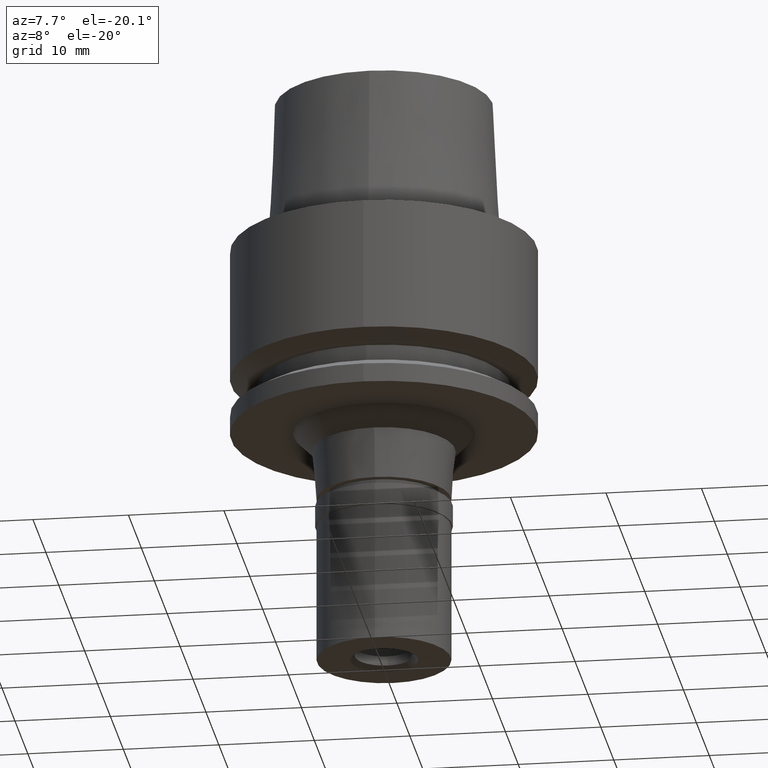
[diagram: clean part render]
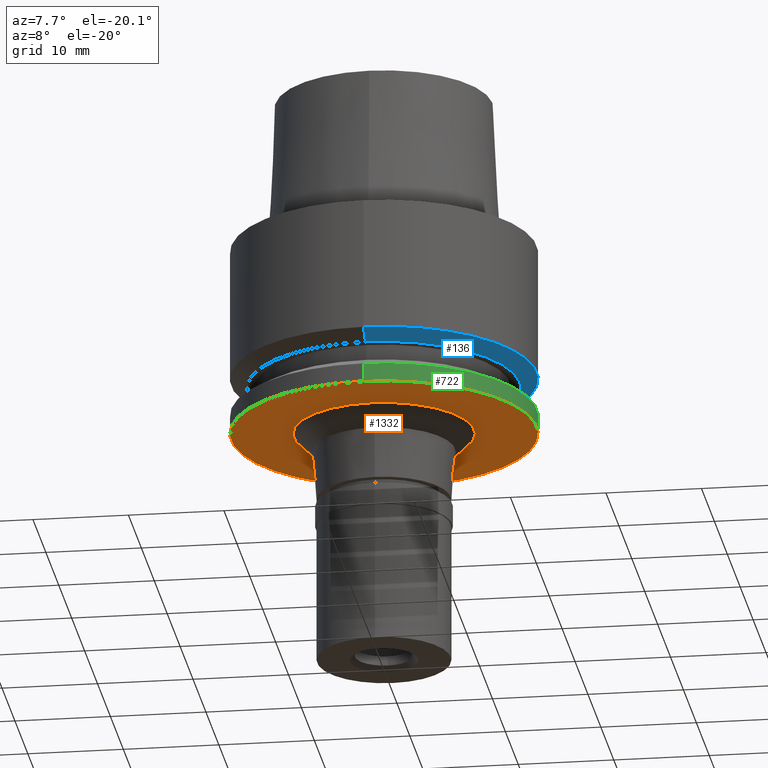
[diagram: same view with three faces highlighted in distinct colors, each labeled with its STEP entity id]
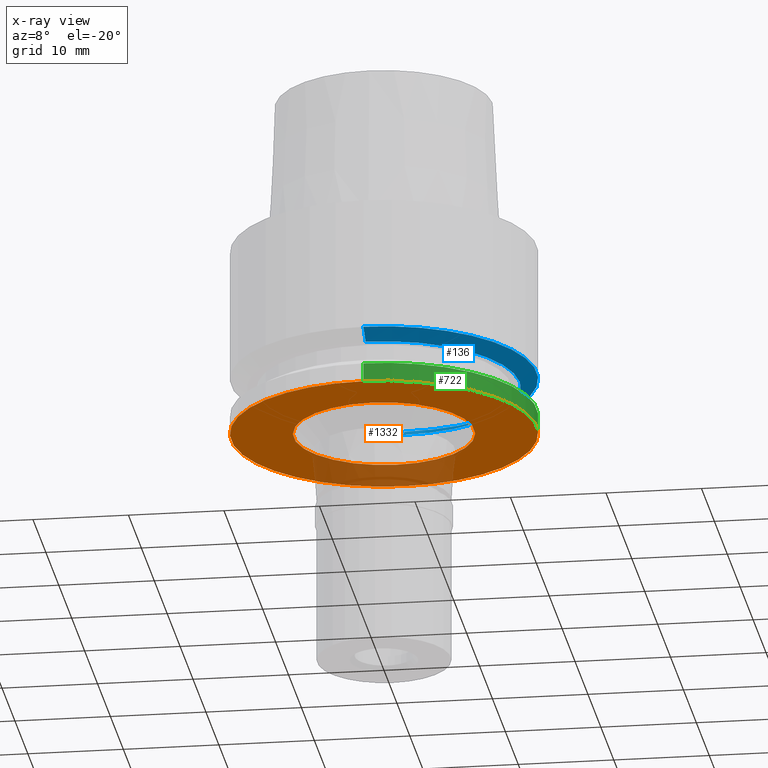
[diagram: x-ray of the same camera — body ghosted, the three highlighted faces saturated]
A machine part, auxiliary view with three faces highlighted in distinct colors.
The next image is the same camera in x-ray (body ghosted, the three faces saturated) — at least one of them is partly hidden behind the body in this view.
Their STEP definitions:

[orange] entity #1332 — the highlighted planar face has unit normal (0, 0, -1).
#65 = ORIENTED_EDGE ( 'NONE', *, *, #1239, .F. ) ;
#195 = CIRCLE ( 'NONE', #1988, 9.463689916687000547 ) ;
#216 = FACE_BOUND ( 'NONE', #1781, .T. ) ;
#326 = CIRCLE ( 'NONE', #497, 16.00000000000000000 ) ;
#381 = CARTESIAN_POINT ( 'NONE',  ( 0.0000000000000000000, 0.0000000000000000000, -20.00000000000000000 ) ) ;
#494 = CARTESIAN_POINT ( 'NONE',  ( 0.0000000000000000000, -9.463689916687000547, -20.00000000000000000 ) ) ;
#497 = AXIS2_PLACEMENT_3D ( 'NONE', #538, #1378, #901 ) ;
#532 = ORIENTED_EDGE ( 'NONE', *, *, #543, .F. ) ;
#538 = CARTESIAN_POINT ( 'NONE',  ( 0.0000000000000000000, 0.0000000000000000000, -20.00000000000000000 ) ) ;
#543 = EDGE_CURVE ( 'NONE', #1497, #1995, #1373, .T. ) ;
#563 = VERTEX_POINT ( 'NONE', #2630 ) ;
#568 = DIRECTION ( 'NONE',  ( 0.0000000000000000000, 0.0000000000000000000, -1.000000000000000000 ) ) ;
#608 = CARTESIAN_POINT ( 'NONE',  ( 0.0000000000000000000, 16.00000000000000000, -20.00000000000000000 ) ) ;
#683 = DIRECTION ( 'NONE',  ( 0.0000000000000000000, -1.000000000000000000, 0.0000000000000000000 ) ) ;
#818 = EDGE_LOOP ( 'NONE', ( #532, #1062 ) ) ;
#892 = AXIS2_PLACEMENT_3D ( 'NONE', #381, #568, #1607 ) ;
#901 = DIRECTION ( 'NONE',  ( 0.0000000000000000000, -1.000000000000000000, 0.0000000000000000000 ) ) ;
#1028 = CIRCLE ( 'NONE', #892, 9.463689916687000547 ) ;
#1062 = ORIENTED_EDGE ( 'NONE', *, *, #1461, .F. ) ;
#1226 = CARTESIAN_POINT ( 'NONE',  ( 0.0000000000000000000, -16.00000000000000000, -20.00000000000000000 ) ) ;
#1239 = EDGE_CURVE ( 'NONE', #563, #2261, #1028, .T. ) ;
#1332 = ADVANCED_FACE ( 'NONE', ( #1468, #216 ), #2305, .T. ) ;
#1373 = CIRCLE ( 'NONE', #1985, 16.00000000000000000 ) ;
#1378 = DIRECTION ( 'NONE',  ( 0.0000000000000000000, 0.0000000000000000000, 1.000000000000000000 ) ) ;
#1461 = EDGE_CURVE ( 'NONE', #1995, #1497, #326, .T. ) ;
#1468 = FACE_OUTER_BOUND ( 'NONE', #818, .T. ) ;
#1497 = VERTEX_POINT ( 'NONE', #608 ) ;
#1607 = DIRECTION ( 'NONE',  ( 0.0000000000000000000, 1.000000000000000000, 0.0000000000000000000 ) ) ;
#1716 = DIRECTION ( 'NONE',  ( 0.0000000000000000000, 0.0000000000000000000, -1.000000000000000000 ) ) ;
#1736 = CARTESIAN_POINT ( 'NONE',  ( 0.0000000000000000000, 0.0000000000000000000, -20.00000000000000000 ) ) ;
#1781 = EDGE_LOOP ( 'NONE', ( #65, #1979 ) ) ;
#1894 = DIRECTION ( 'NONE',  ( 0.0000000000000000000, -1.000000000000000000, 0.0000000000000000000 ) ) ;
#1971 = CARTESIAN_POINT ( 'NONE',  ( 0.0000000000000000000, 0.0000000000000000000, -20.00000000000000000 ) ) ;
#1979 = ORIENTED_EDGE ( 'NONE', *, *, #2183, .F. ) ;
#1985 = AXIS2_PLACEMENT_3D ( 'NONE', #1971, #2370, #2166 ) ;
#1988 = AXIS2_PLACEMENT_3D ( 'NONE', #1736, #2557, #683 ) ;
#1995 = VERTEX_POINT ( 'NONE', #1226 ) ;
#2118 = AXIS2_PLACEMENT_3D ( 'NONE', #2342, #1716, #1894 ) ;
#2166 = DIRECTION ( 'NONE',  ( 0.0000000000000000000, 1.000000000000000000, 0.0000000000000000000 ) ) ;
#2183 = EDGE_CURVE ( 'NONE', #2261, #563, #195, .T. ) ;
#2261 = VERTEX_POINT ( 'NONE', #494 ) ;
#2305 = PLANE ( 'NONE',  #2118 ) ;
#2342 = CARTESIAN_POINT ( 'NONE',  ( 0.0000000000000000000, 0.0000000000000000000, -20.00000000000000000 ) ) ;
#2370 = DIRECTION ( 'NONE',  ( 0.0000000000000000000, 0.0000000000000000000, 1.000000000000000000 ) ) ;
#2557 = DIRECTION ( 'NONE',  ( 0.0000000000000000000, 0.0000000000000000000, -1.000000000000000000 ) ) ;
#2630 = CARTESIAN_POINT ( 'NONE',  ( 0.0000000000000000000, 9.463689916687000547, -20.00000000000000000 ) ) ;

[blue] entity #136 — the highlighted conical surface has half-angle 60 deg.
#23 = VECTOR ( 'NONE', #1221, 1000.000000000000000 ) ;
#71 = DIRECTION ( 'NONE',  ( 0.0000000000000000000, 0.0000000000000000000, 1.000000000000000000 ) ) ;
#103 = AXIS2_PLACEMENT_3D ( 'NONE', #2144, #71, #2563 ) ;
#136 = ADVANCED_FACE ( 'NONE', ( #296 ), #2678, .T. ) ;
#229 = DIRECTION ( 'NONE',  ( 0.0000000000000000000, -0.8660254037847886499, -0.4999999999993937627 ) ) ;
#296 = FACE_OUTER_BOUND ( 'NONE', #1191, .T. ) ;
#335 = EDGE_CURVE ( 'NONE', #606, #2267, #1454, .T. ) ;
#361 = AXIS2_PLACEMENT_3D ( 'NONE', #1974, #2388, #516 ) ;
#388 = ORIENTED_EDGE ( 'NONE', *, *, #2628, .F. ) ;
#405 = CARTESIAN_POINT ( 'NONE',  ( 0.0000000000000000000, -16.00000000000000000, -13.97927405783999966 ) ) ;
#490 = VECTOR ( 'NONE', #229, 1000.000000000000000 ) ;
#516 = DIRECTION ( 'NONE',  ( 0.0000000000000000000, 1.000000000000000000, 0.0000000000000000000 ) ) ;
#555 = CARTESIAN_POINT ( 'NONE',  ( 0.0000000000000000000, 16.00000000000000000, -13.97927405783999966 ) ) ;
#577 = LINE ( 'NONE', #405, #23 ) ;
#583 = CIRCLE ( 'NONE', #103, 16.00000000000000000 ) ;
#604 = ORIENTED_EDGE ( 'NONE', *, *, #2304, .T. ) ;
#606 = VERTEX_POINT ( 'NONE', #555 ) ;
#768 = CARTESIAN_POINT ( 'NONE',  ( 0.0000000000000000000, -16.00000000000000000, -13.97927405783999966 ) ) ;
#814 = EDGE_CURVE ( 'NONE', #1951, #1308, #577, .T. ) ;
#920 = CARTESIAN_POINT ( 'NONE',  ( 0.0000000000000000000, 14.23205080756999941, -15.00000000000000000 ) ) ;
#988 = AXIS2_PLACEMENT_3D ( 'NONE', #1996, #1778, #2577 ) ;
#1058 = ORIENTED_EDGE ( 'NONE', *, *, #814, .T. ) ;
#1191 = EDGE_LOOP ( 'NONE', ( #388, #1058, #604, #1444 ) ) ;
#1221 = DIRECTION ( 'NONE',  ( 0.0000000000000000000, 0.8660254037847886499, -0.4999999999993937627 ) ) ;
#1308 = VERTEX_POINT ( 'NONE', #2532 ) ;
#1444 = ORIENTED_EDGE ( 'NONE', *, *, #335, .F. ) ;
#1454 = LINE ( 'NONE', #2072, #490 ) ;
#1778 = DIRECTION ( 'NONE',  ( 0.0000000000000000000, 0.0000000000000000000, 1.000000000000000000 ) ) ;
#1948 = CIRCLE ( 'NONE', #988, 14.23205080756999941 ) ;
#1951 = VERTEX_POINT ( 'NONE', #768 ) ;
#1974 = CARTESIAN_POINT ( 'NONE',  ( 0.0000000000000000000, 0.0000000000000000000, -14.48963702891999894 ) ) ;
#1996 = CARTESIAN_POINT ( 'NONE',  ( 0.0000000000000000000, 0.0000000000000000000, -15.00000000000000000 ) ) ;
#2072 = CARTESIAN_POINT ( 'NONE',  ( 0.0000000000000000000, 16.00000000000000000, -13.97927405783999966 ) ) ;
#2144 = CARTESIAN_POINT ( 'NONE',  ( 0.0000000000000000000, 0.0000000000000000000, -13.97927405783999966 ) ) ;
#2267 = VERTEX_POINT ( 'NONE', #920 ) ;
#2304 = EDGE_CURVE ( 'NONE', #1308, #2267, #1948, .T. ) ;
#2388 = DIRECTION ( 'NONE',  ( 0.0000000000000000000, 0.0000000000000000000, 1.000000000000000000 ) ) ;
#2532 = CARTESIAN_POINT ( 'NONE',  ( 0.0000000000000000000, -14.23205080756999941, -15.00000000000000000 ) ) ;
#2563 = DIRECTION ( 'NONE',  ( 0.0000000000000000000, -1.000000000000000000, 0.0000000000000000000 ) ) ;
#2577 = DIRECTION ( 'NONE',  ( 0.0000000000000000000, -1.000000000000000000, 0.0000000000000000000 ) ) ;
#2628 = EDGE_CURVE ( 'NONE', #1951, #606, #583, .T. ) ;
#2678 = CONICAL_SURFACE ( 'NONE', #361, 15.11602540378000015, 1.047197551196400456 ) ;

[green] entity #722 — the highlighted cylindrical surface (partial cylindrical patch) has radius 16 mm, axis along (0, 0, -1).
#56 = AXIS2_PLACEMENT_3D ( 'NONE', #1967, #2143, #1745 ) ;
#106 = EDGE_CURVE ( 'NONE', #861, #1443, #1544, .T. ) ;
#112 = EDGE_LOOP ( 'NONE', ( #2179, #1604, #2659, #1104 ) ) ;
#171 = DIRECTION ( 'NONE',  ( 0.0000000000000000000, 0.0000000000000000000, -1.000000000000000000 ) ) ;
#326 = CIRCLE ( 'NONE', #497, 16.00000000000000000 ) ;
#345 = CARTESIAN_POINT ( 'NONE',  ( 0.0000000000000000000, -16.00000000000000000, -18.02072594216000212 ) ) ;
#362 = CARTESIAN_POINT ( 'NONE',  ( 0.0000000000000000000, 0.0000000000000000000, 18.84999999999999787 ) ) ;
#497 = AXIS2_PLACEMENT_3D ( 'NONE', #538, #1378, #901 ) ;
#498 = CARTESIAN_POINT ( 'NONE',  ( 0.0000000000000000000, -16.00000000000000000, -18.02072594216000212 ) ) ;
#538 = CARTESIAN_POINT ( 'NONE',  ( 0.0000000000000000000, 0.0000000000000000000, -20.00000000000000000 ) ) ;
#608 = CARTESIAN_POINT ( 'NONE',  ( 0.0000000000000000000, 16.00000000000000000, -20.00000000000000000 ) ) ;
#722 = ADVANCED_FACE ( 'NONE', ( #2247 ), #2438, .T. ) ;
#725 = DIRECTION ( 'NONE',  ( 0.0000000000000000000, -4.783562901008000077E-13, -1.000000000000000000 ) ) ;
#737 = LINE ( 'NONE', #345, #2123 ) ;
#861 = VERTEX_POINT ( 'NONE', #1871 ) ;
#901 = DIRECTION ( 'NONE',  ( 0.0000000000000000000, -1.000000000000000000, 0.0000000000000000000 ) ) ;
#1104 = ORIENTED_EDGE ( 'NONE', *, *, #2079, .F. ) ;
#1117 = LINE ( 'NONE', #1723, #1913 ) ;
#1226 = CARTESIAN_POINT ( 'NONE',  ( 0.0000000000000000000, -16.00000000000000000, -20.00000000000000000 ) ) ;
#1378 = DIRECTION ( 'NONE',  ( 0.0000000000000000000, 0.0000000000000000000, 1.000000000000000000 ) ) ;
#1443 = VERTEX_POINT ( 'NONE', #498 ) ;
#1461 = EDGE_CURVE ( 'NONE', #1995, #1497, #326, .T. ) ;
#1497 = VERTEX_POINT ( 'NONE', #608 ) ;
#1544 = CIRCLE ( 'NONE', #56, 16.00000000000000000 ) ;
#1594 = AXIS2_PLACEMENT_3D ( 'NONE', #362, #171, #1881 ) ;
#1604 = ORIENTED_EDGE ( 'NONE', *, *, #2242, .T. ) ;
#1723 = CARTESIAN_POINT ( 'NONE',  ( 0.0000000000000000000, 16.00000000000000000, -18.02072594216000212 ) ) ;
#1745 = DIRECTION ( 'NONE',  ( 0.0000000000000000000, 1.000000000000000000, 0.0000000000000000000 ) ) ;
#1871 = CARTESIAN_POINT ( 'NONE',  ( 0.0000000000000000000, 16.00000000000000000, -18.02072594216000212 ) ) ;
#1881 = DIRECTION ( 'NONE',  ( 0.0000000000000000000, -1.000000000000000000, 0.0000000000000000000 ) ) ;
#1913 = VECTOR ( 'NONE', #2135, 1000.000000000000000 ) ;
#1967 = CARTESIAN_POINT ( 'NONE',  ( 0.0000000000000000000, 0.0000000000000000000, -18.02072594216000212 ) ) ;
#1995 = VERTEX_POINT ( 'NONE', #1226 ) ;
#2079 = EDGE_CURVE ( 'NONE', #861, #1497, #1117, .T. ) ;
#2123 = VECTOR ( 'NONE', #725, 1000.000000000000000 ) ;
#2135 = DIRECTION ( 'NONE',  ( 0.0000000000000000000, 4.783562901008000077E-13, -1.000000000000000000 ) ) ;
#2143 = DIRECTION ( 'NONE',  ( 0.0000000000000000000, 0.0000000000000000000, -1.000000000000000000 ) ) ;
#2179 = ORIENTED_EDGE ( 'NONE', *, *, #106, .T. ) ;
#2242 = EDGE_CURVE ( 'NONE', #1443, #1995, #737, .T. ) ;
#2247 = FACE_OUTER_BOUND ( 'NONE', #112, .T. ) ;
#2438 = CYLINDRICAL_SURFACE ( 'NONE', #1594, 16.00000000000000000 ) ;
#2659 = ORIENTED_EDGE ( 'NONE', *, *, #1461, .T. ) ;